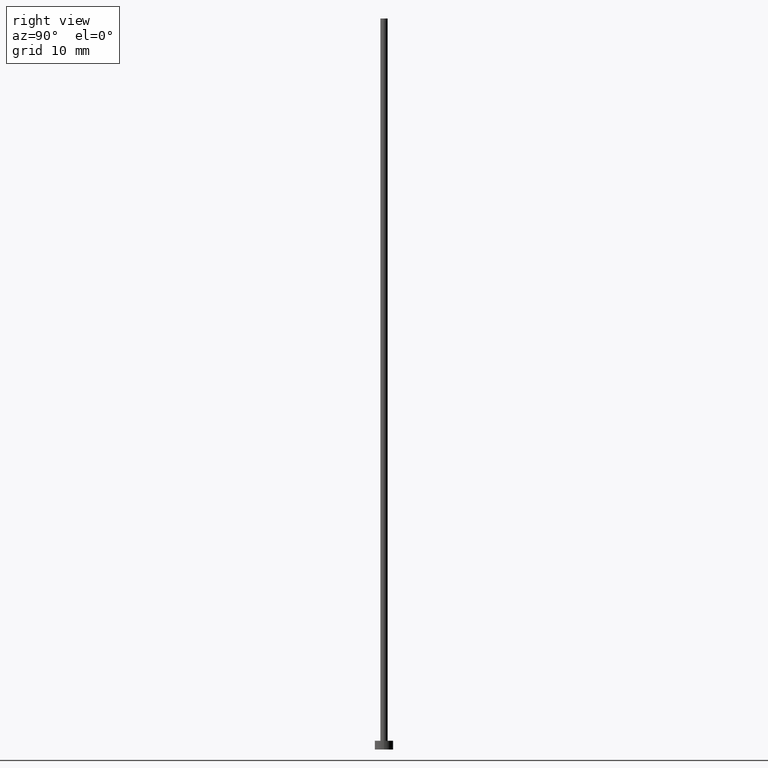
[diagram: clean part render]
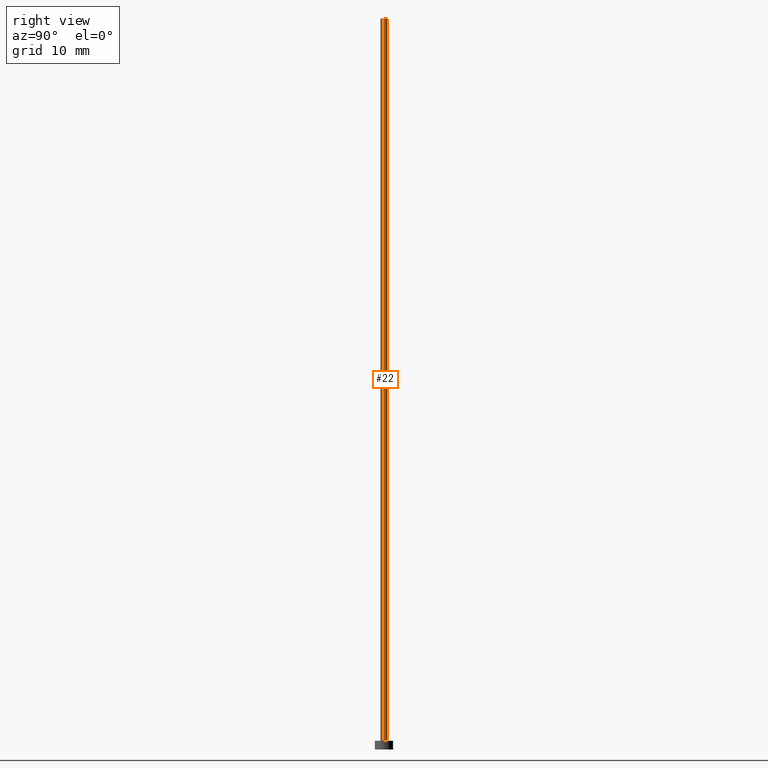
[diagram: same view with one face highlighted and labeled with its STEP entity id]
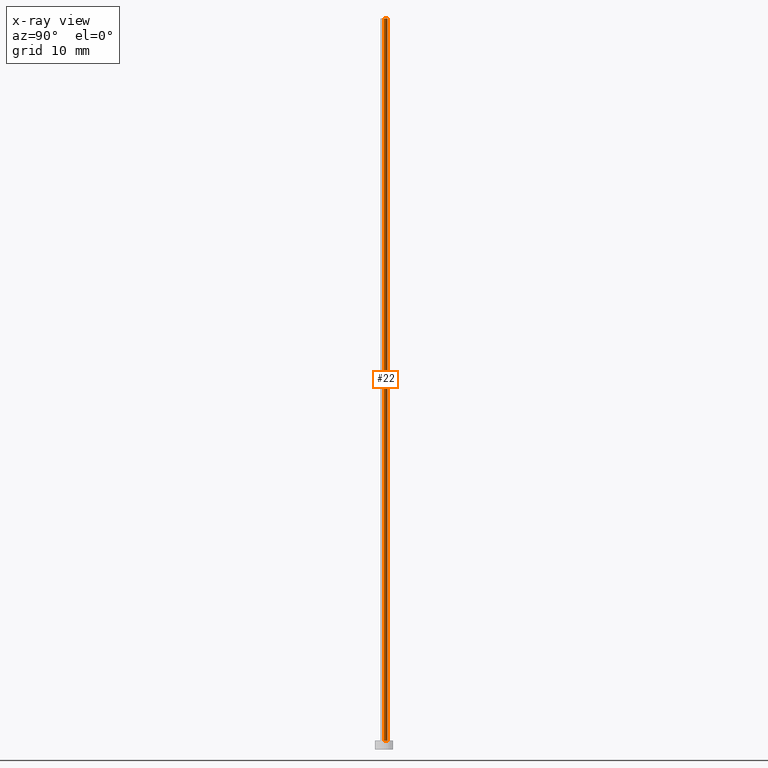
[diagram: x-ray of the same camera — body ghosted, the highlighted face saturated]
A machine part, right view. The second image highlights one B-rep face of the part: STEP entity #22.
The next image is the same camera in x-ray: the body ghosted, the highlighted face saturated — about 0% of this face is hidden behind the body in this view.
In plain terms, the highlighted cylindrical surface (edge-blend (fillet) strip) has radius 0.5 mm, axis along (-0, -0, -1).
Its self-contained STEP definition (entity closure, byte-faithful):
#18 = DIRECTION ( 'NONE',  ( -0.000000000000000000, -0.000000000000000000, -1.000000000000000000 ) ) ;
#21 = DIRECTION ( 'NONE',  ( 1.000000000000000000, 0.000000000000000000, 0.000000000000000000 ) ) ;
#22 = ADVANCED_FACE ( 'NONE', ( #162 ), #240, .T. ) ;
#36 = CARTESIAN_POINT ( 'NONE',  ( 0.5000000000000000000, 6.123233995736766036E-17, 100.0000000000000000 ) ) ;
#37 = EDGE_LOOP ( 'NONE', ( #113, #102, #106, #125 ) ) ;
#58 = CARTESIAN_POINT ( 'NONE',  ( -0.5000000000000000000, 0.000000000000000000, 1.199999999999999956 ) ) ;
#66 = VECTOR ( 'NONE', #18, 1000.000000000000000 ) ;
#77 = DIRECTION ( 'NONE',  ( 0.000000000000000000, 0.000000000000000000, 1.000000000000000000 ) ) ;
#80 = VERTEX_POINT ( 'NONE', #85 ) ;
#83 = DIRECTION ( 'NONE',  ( -0.000000000000000000, -0.000000000000000000, -1.000000000000000000 ) ) ;
#85 = CARTESIAN_POINT ( 'NONE',  ( 0.5000000000000000000, 6.123233995736766036E-17, 1.199999999999999956 ) ) ;
#86 = LINE ( 'NONE', #213, #249 ) ;
#102 = ORIENTED_EDGE ( 'NONE', *, *, #161, .T. ) ;
#106 = ORIENTED_EDGE ( 'NONE', *, *, #212, .T. ) ;
#107 = VERTEX_POINT ( 'NONE', #160 ) ;
#113 = ORIENTED_EDGE ( 'NONE', *, *, #132, .F. ) ;
#125 = ORIENTED_EDGE ( 'NONE', *, *, #182, .F. ) ;
#132 = EDGE_CURVE ( 'NONE', #107, #223, #148, .T. ) ;
#133 = AXIS2_PLACEMENT_3D ( 'NONE', #224, #169, #140 ) ;
#139 = CARTESIAN_POINT ( 'NONE',  ( 0.000000000000000000, 0.000000000000000000, 100.0000000000000000 ) ) ;
#140 = DIRECTION ( 'NONE',  ( 1.000000000000000000, 0.000000000000000000, 0.000000000000000000 ) ) ;
#142 = AXIS2_PLACEMENT_3D ( 'NONE', #183, #77, #21 ) ;
#146 = VERTEX_POINT ( 'NONE', #58 ) ;
#148 = CIRCLE ( 'NONE', #142, 0.5000000000000000000 ) ;
#160 = CARTESIAN_POINT ( 'NONE',  ( 0.5000000000000000000, 6.123233995736766036E-17, 100.0000000000000000 ) ) ;
#161 = EDGE_CURVE ( 'NONE', #107, #80, #216, .T. ) ;
#162 = FACE_OUTER_BOUND ( 'NONE', #37, .T. ) ;
#169 = DIRECTION ( 'NONE',  ( 0.000000000000000000, 0.000000000000000000, 1.000000000000000000 ) ) ;
#182 = EDGE_CURVE ( 'NONE', #223, #146, #86, .T. ) ;
#183 = CARTESIAN_POINT ( 'NONE',  ( 0.000000000000000000, 0.000000000000000000, 100.0000000000000000 ) ) ;
#206 = DIRECTION ( 'NONE',  ( -1.000000000000000000, 0.000000000000000000, 0.000000000000000000 ) ) ;
#212 = EDGE_CURVE ( 'NONE', #80, #146, #243, .T. ) ;
#213 = CARTESIAN_POINT ( 'NONE',  ( -0.5000000000000000000, 0.000000000000000000, 100.0000000000000000 ) ) ;
#214 = AXIS2_PLACEMENT_3D ( 'NONE', #139, #221, #206 ) ;
#216 = LINE ( 'NONE', #36, #66 ) ;
#221 = DIRECTION ( 'NONE',  ( -0.000000000000000000, -0.000000000000000000, -1.000000000000000000 ) ) ;
#223 = VERTEX_POINT ( 'NONE', #232 ) ;
#224 = CARTESIAN_POINT ( 'NONE',  ( 0.000000000000000000, 0.000000000000000000, 1.199999999999999956 ) ) ;
#232 = CARTESIAN_POINT ( 'NONE',  ( -0.5000000000000000000, 0.000000000000000000, 100.0000000000000000 ) ) ;
#240 = CYLINDRICAL_SURFACE ( 'NONE', #214, 0.5000000000000000000 ) ;
#243 = CIRCLE ( 'NONE', #133, 0.5000000000000000000 ) ;
#249 = VECTOR ( 'NONE', #83, 1000.000000000000000 ) ;